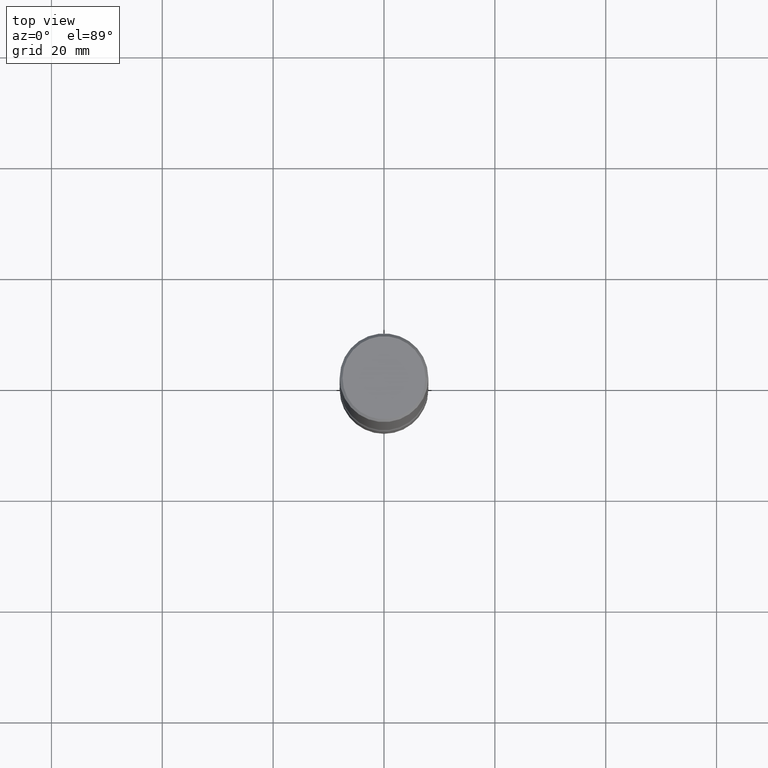
[diagram: clean part render]
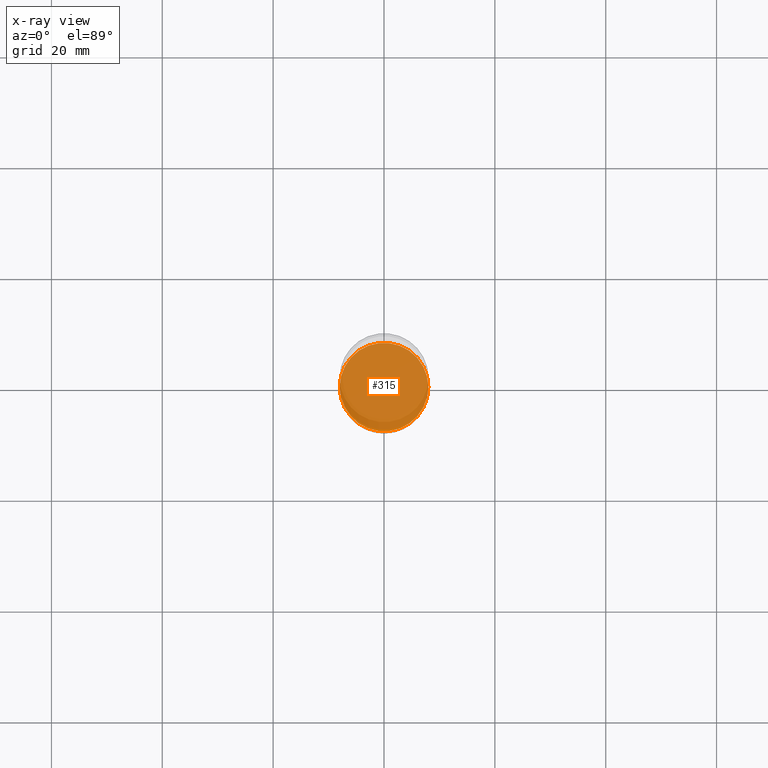
[diagram: x-ray — body ghosted, one internal face saturated and labeled with its STEP entity id]
A machine part, top view, then the same camera in x-ray: the body is ghosted and one INTERNAL B-rep face — a face not visible from any outside direction — is saturated and labeled: STEP entity #315.
In plain terms, the highlighted planar face has unit normal (0, -0, -1).
Its self-contained STEP definition (entity closure, byte-faithful):
#57 = DIRECTION ( 'NONE',  ( -1.000000000000000000, 6.982962677686268288E-15, 0.000000000000000000 ) ) ;
#74 = PLANE ( 'NONE',  #248 ) ;
#101 = DIRECTION ( 'NONE',  ( 2.445468806185136597E-29, -3.491481338843145583E-15, -1.000000000000000000 ) ) ;
#130 = AXIS2_PLACEMENT_3D ( 'NONE', #325, #101, #57 ) ;
#141 = CIRCLE ( 'NONE', #358, 0.3144499999999992856 ) ;
#144 = DIRECTION ( 'NONE',  ( 2.445468806185136597E-29, -3.491481338843145583E-15, -1.000000000000000000 ) ) ;
#157 = CARTESIAN_POINT ( 'NONE',  ( 2.195792613998535611E-15, 0.3144499999999858519, -3.858300000000001173 ) ) ;
#170 = ORIENTED_EDGE ( 'NONE', *, *, #538, .T. ) ;
#227 = EDGE_LOOP ( 'NONE', ( #535, #170 ) ) ;
#248 = AXIS2_PLACEMENT_3D ( 'NONE', #157, #343, #340 ) ;
#303 = VERTEX_POINT ( 'NONE', #507 ) ;
#315 = ADVANCED_FACE ( 'NONE', ( #554 ), #74, .T. ) ;
#325 = CARTESIAN_POINT ( 'NONE',  ( 9.435352294904112142E-29, -1.347118244965850850E-14, -3.858300000000000285 ) ) ;
#340 = DIRECTION ( 'NONE',  ( -1.000000000000000000, 6.982962677686265922E-15, -4.876176775795935793E-29 ) ) ;
#343 = DIRECTION ( 'NONE',  ( 2.438088387897960049E-29, -3.491481338843145188E-15, -1.000000000000000000 ) ) ;
#358 = AXIS2_PLACEMENT_3D ( 'NONE', #542, #144, #369 ) ;
#369 = DIRECTION ( 'NONE',  ( -1.000000000000000000, 6.982962677686268288E-15, 0.000000000000000000 ) ) ;
#391 = VERTEX_POINT ( 'NONE', #397 ) ;
#397 = CARTESIAN_POINT ( 'NONE',  ( -0.3144499999999992856, -1.123501908580842096E-14, -3.858300000000000285 ) ) ;
#436 = CIRCLE ( 'NONE', #130, 0.3144499999999992856 ) ;
#507 = CARTESIAN_POINT ( 'NONE',  ( 0.3144499999999992856, -1.566758846895392126E-14, -3.858300000000000285 ) ) ;
#535 = ORIENTED_EDGE ( 'NONE', *, *, #566, .T. ) ;
#538 = EDGE_CURVE ( 'NONE', #391, #303, #141, .T. ) ;
#542 = CARTESIAN_POINT ( 'NONE',  ( 9.435352294904112142E-29, -1.347118244965850850E-14, -3.858300000000000285 ) ) ;
#554 = FACE_OUTER_BOUND ( 'NONE', #227, .T. ) ;
#566 = EDGE_CURVE ( 'NONE', #303, #391, #436, .T. ) ;